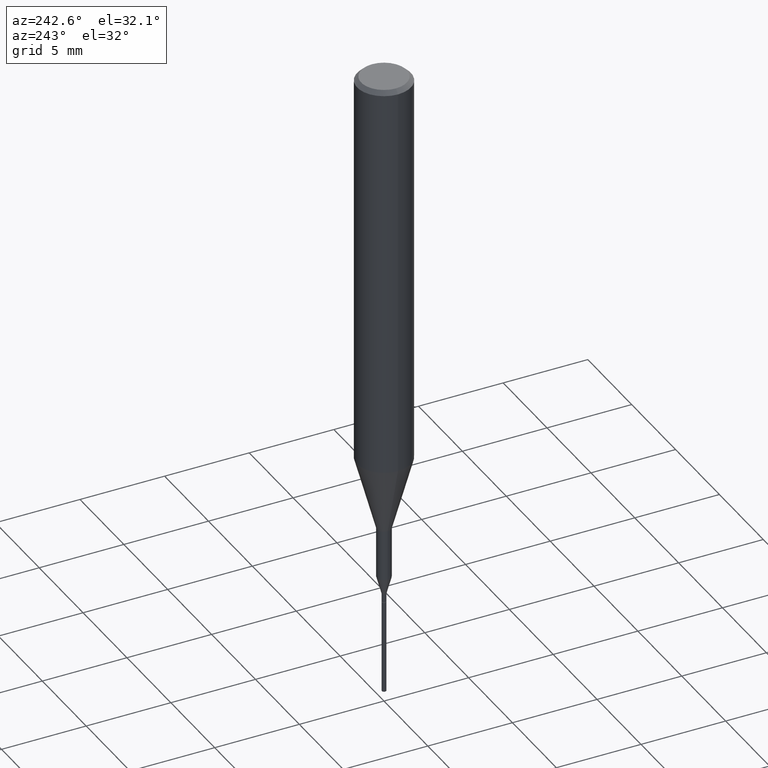
[diagram: clean part render]
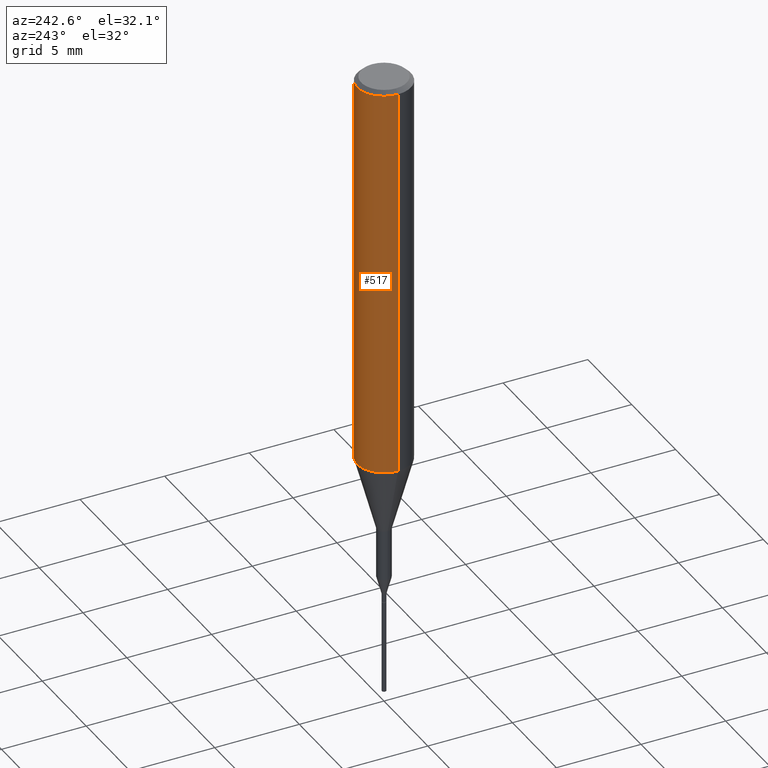
[diagram: same view with one face highlighted and labeled with its STEP entity id]
A machine part, auxiliary view. The second image highlights one B-rep face of the part: STEP entity #517.
In plain terms, the highlighted cylindrical surface (edge-blend (fillet) strip) has radius 1.5875 mm, axis along (-0, 0, 1).
Its self-contained STEP definition (entity closure, byte-faithful):
#12 = ORIENTED_EDGE ( 'NONE', *, *, #545, .F. ) ;
#21 = DIRECTION ( 'NONE',  ( -2.445468806185136597E-29, 3.491481338843145583E-15, 1.000000000000000000 ) ) ;
#31 = LINE ( 'NONE', #67, #242 ) ;
#55 = ORIENTED_EDGE ( 'NONE', *, *, #155, .F. ) ;
#60 = EDGE_CURVE ( 'NONE', #374, #562, #31, .T. ) ;
#66 = CARTESIAN_POINT ( 'NONE',  ( -0.06250000000000000000, -1.191264174815165938E-15, -0.009375000000000069042 ) ) ;
#67 = CARTESIAN_POINT ( 'NONE',  ( -0.06250000000000005551, 4.440892098500630106E-16, -3.074334431409318916E-30 ) ) ;
#110 = AXIS2_PLACEMENT_3D ( 'NONE', #435, #574, #481 ) ;
#126 = DIRECTION ( 'NONE',  ( 1.000000000000000000, -6.982962677686265922E-15, 0.000000000000000000 ) ) ;
#143 = ORIENTED_EDGE ( 'NONE', *, *, #60, .T. ) ;
#155 = EDGE_CURVE ( 'NONE', #335, #333, #590, .T. ) ;
#161 = CARTESIAN_POINT ( 'NONE',  ( 2.292627005798582813E-31, -3.273263755165473266E-17, -0.009375000000000069042 ) ) ;
#200 = EDGE_CURVE ( 'NONE', #335, #374, #538, .T. ) ;
#212 = DIRECTION ( 'NONE',  ( -2.445468806185136877E-29, 3.491481338843145188E-15, 1.000000000000000000 ) ) ;
#242 = VECTOR ( 'NONE', #212, 39.37007874015748143 ) ;
#243 = ORIENTED_EDGE ( 'NONE', *, *, #200, .T. ) ;
#251 = AXIS2_PLACEMENT_3D ( 'NONE', #544, #462, #126 ) ;
#266 = DIRECTION ( 'NONE',  ( -2.445468806185136877E-29, 3.491481338843145188E-15, 1.000000000000000000 ) ) ;
#277 = EDGE_LOOP ( 'NONE', ( #243, #143, #12, #55 ) ) ;
#294 = CYLINDRICAL_SURFACE ( 'NONE', #110, 0.06250000000000005551 ) ;
#328 = CARTESIAN_POINT ( 'NONE',  ( -0.06250000000000011102, -2.793884921928740709E-15, -0.9273926501499395458 ) ) ;
#333 = VERTEX_POINT ( 'NONE', #456 ) ;
#335 = VERTEX_POINT ( 'NONE', #411 ) ;
#342 = DIRECTION ( 'NONE',  ( 1.000000000000000000, -6.982962677686266711E-15, 0.000000000000000000 ) ) ;
#374 = VERTEX_POINT ( 'NONE', #328 ) ;
#389 = VECTOR ( 'NONE', #266, 39.37007874015748143 ) ;
#411 = CARTESIAN_POINT ( 'NONE',  ( 0.06250000000000011102, -3.674409299134196572E-15, -0.9273926501499395458 ) ) ;
#435 = CARTESIAN_POINT ( 'NONE',  ( 0.000000000000000000, 0.000000000000000000, 0.000000000000000000 ) ) ;
#456 = CARTESIAN_POINT ( 'NONE',  ( 0.06250000000000000000, -4.691678049070464390E-16, -0.009375000000000069042 ) ) ;
#462 = DIRECTION ( 'NONE',  ( -2.445468806185136597E-29, 3.491481338843145583E-15, 1.000000000000000000 ) ) ;
#467 = CIRCLE ( 'NONE', #499, 0.06250000000000000000 ) ;
#481 = DIRECTION ( 'NONE',  ( 1.000000000000000000, -6.982962677686266711E-15, 4.876176775795935232E-29 ) ) ;
#499 = AXIS2_PLACEMENT_3D ( 'NONE', #161, #21, #342 ) ;
#503 = CARTESIAN_POINT ( 'NONE',  ( 0.06250000000000005551, -4.364351673553920638E-16, 3.047610484872462323E-30 ) ) ;
#517 = ADVANCED_FACE ( 'NONE', ( #564 ), #294, .T. ) ;
#538 = CIRCLE ( 'NONE', #251, 0.06250000000000011102 ) ;
#544 = CARTESIAN_POINT ( 'NONE',  ( 2.267909797027042920E-29, -3.237974131778804114E-15, -0.9273926501499395458 ) ) ;
#545 = EDGE_CURVE ( 'NONE', #333, #562, #467, .T. ) ;
#562 = VERTEX_POINT ( 'NONE', #66 ) ;
#564 = FACE_OUTER_BOUND ( 'NONE', #277, .T. ) ;
#574 = DIRECTION ( 'NONE',  ( -2.445468806185136597E-29, 3.491481338843145583E-15, 1.000000000000000000 ) ) ;
#590 = LINE ( 'NONE', #503, #389 ) ;